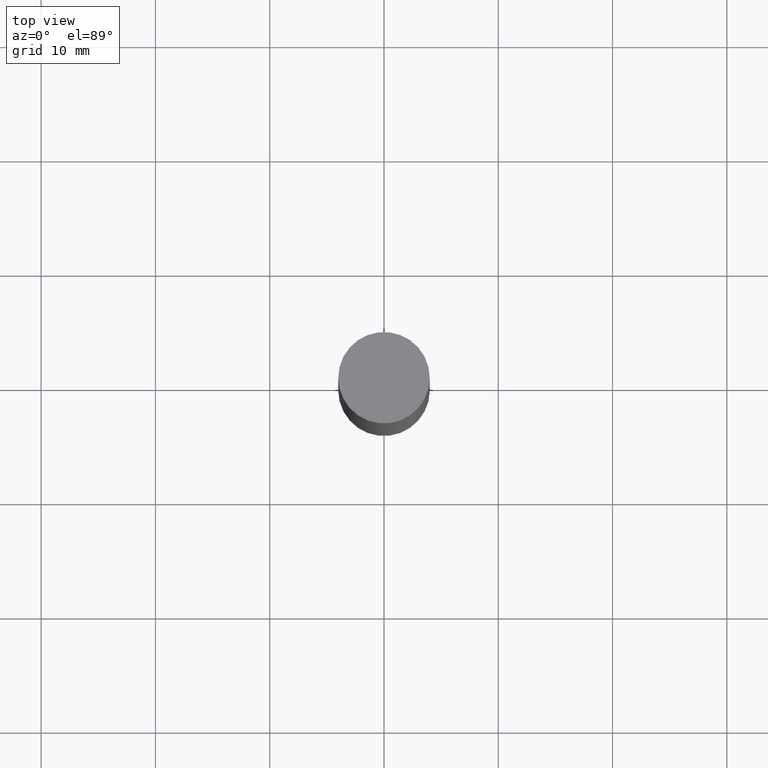
[diagram: clean part render]
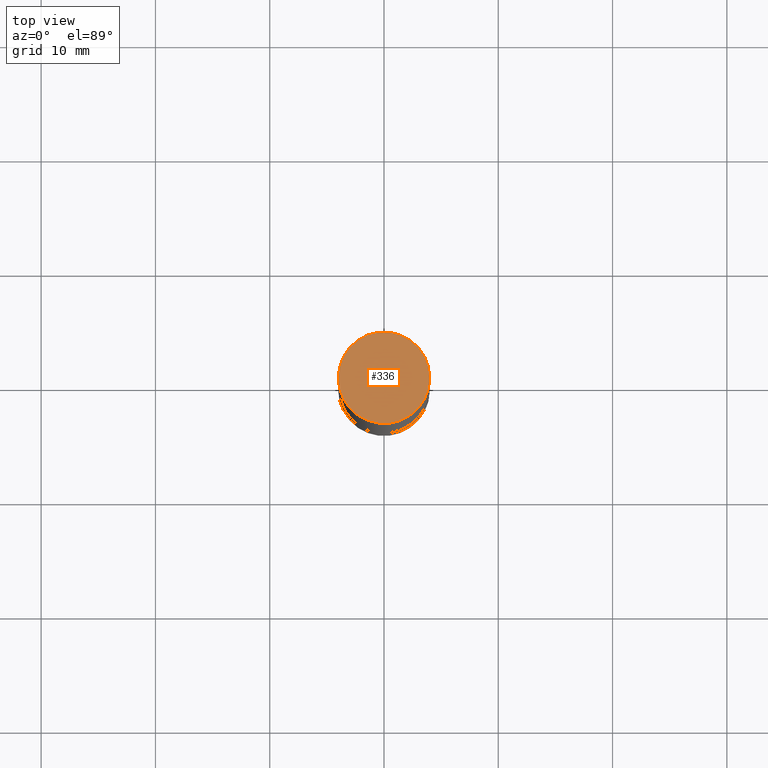
[diagram: same view with one face highlighted and labeled with its STEP entity id]
A machine part, top view. The second image highlights one B-rep face of the part: STEP entity #336.
In plain terms, the highlighted planar face has unit normal (0, 0, 1).
Its self-contained STEP definition (entity closure, byte-faithful):
#76 = DIRECTION ( 'NONE',  ( 1.000000000000000000, -6.982962677686265922E-15, 0.000000000000000000 ) ) ;
#83 = DIRECTION ( 'NONE',  ( 2.445468806185136597E-29, 3.492890411551752677E-15, 1.000000000000000000 ) ) ;
#94 = ORIENTED_EDGE ( 'NONE', *, *, #189, .T. ) ;
#105 = AXIS2_PLACEMENT_3D ( 'NONE', #450, #568, #609 ) ;
#149 = CARTESIAN_POINT ( 'NONE',  ( 0.1575000000000000011, -1.098069160216006353E-15, 5.463695987328526437E-16 ) ) ;
#153 = CIRCLE ( 'NONE', #554, 0.1575000000000000011 ) ;
#176 = ORIENTED_EDGE ( 'NONE', *, *, #213, .T. ) ;
#189 = EDGE_CURVE ( 'NONE', #538, #529, #153, .T. ) ;
#213 = EDGE_CURVE ( 'NONE', #529, #538, #257, .T. ) ;
#234 = PLANE ( 'NONE',  #105 ) ;
#251 = CARTESIAN_POINT ( 'NONE',  ( -0.1575000000000000011, 2.572551809600735932E-16, 5.463695987328556019E-16 ) ) ;
#257 = CIRCLE ( 'NONE', #569, 0.1575000000000000011 ) ;
#268 = EDGE_LOOP ( 'NONE', ( #176, #94 ) ) ;
#336 = ADVANCED_FACE ( 'NONE', ( #506 ), #234, .T. ) ;
#341 = CARTESIAN_POINT ( 'NONE',  ( 6.065496279980994755E-29, 1.747461519580534218E-18, 5.463695987328526437E-16 ) ) ;
#405 = DIRECTION ( 'NONE',  ( 1.000000000000000000, -6.982962677686265922E-15, 0.000000000000000000 ) ) ;
#450 = CARTESIAN_POINT ( 'NONE',  ( 1.099816621735647434E-15, 0.1574999999999999456, 0.000000000000000000 ) ) ;
#506 = FACE_OUTER_BOUND ( 'NONE', #268, .T. ) ;
#509 = CARTESIAN_POINT ( 'NONE',  ( 6.065496279980994755E-29, 1.747461519580534218E-18, 5.463695987328526437E-16 ) ) ;
#529 = VERTEX_POINT ( 'NONE', #149 ) ;
#538 = VERTEX_POINT ( 'NONE', #251 ) ;
#554 = AXIS2_PLACEMENT_3D ( 'NONE', #341, #83, #405 ) ;
#568 = DIRECTION ( 'NONE',  ( 2.438088387897959769E-29, 3.492890411551753071E-15, 1.000000000000000000 ) ) ;
#569 = AXIS2_PLACEMENT_3D ( 'NONE', #509, #655, #76 ) ;
#609 = DIRECTION ( 'NONE',  ( -1.000000000000000000, 6.982962677686265922E-15, -9.839502134516470631E-33 ) ) ;
#655 = DIRECTION ( 'NONE',  ( 2.445468806185136597E-29, 3.492890411551752677E-15, 1.000000000000000000 ) ) ;